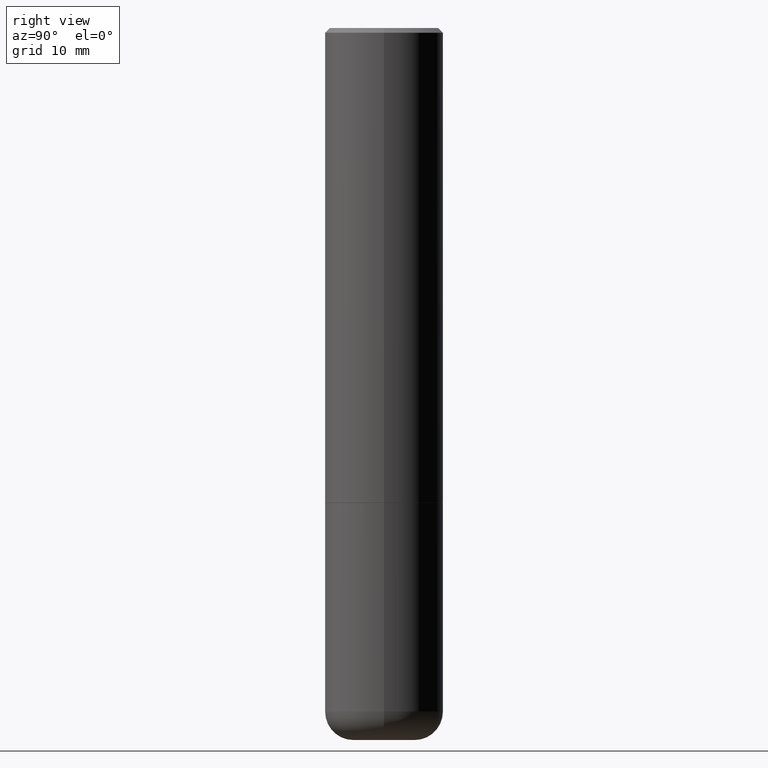
[diagram: clean part render]
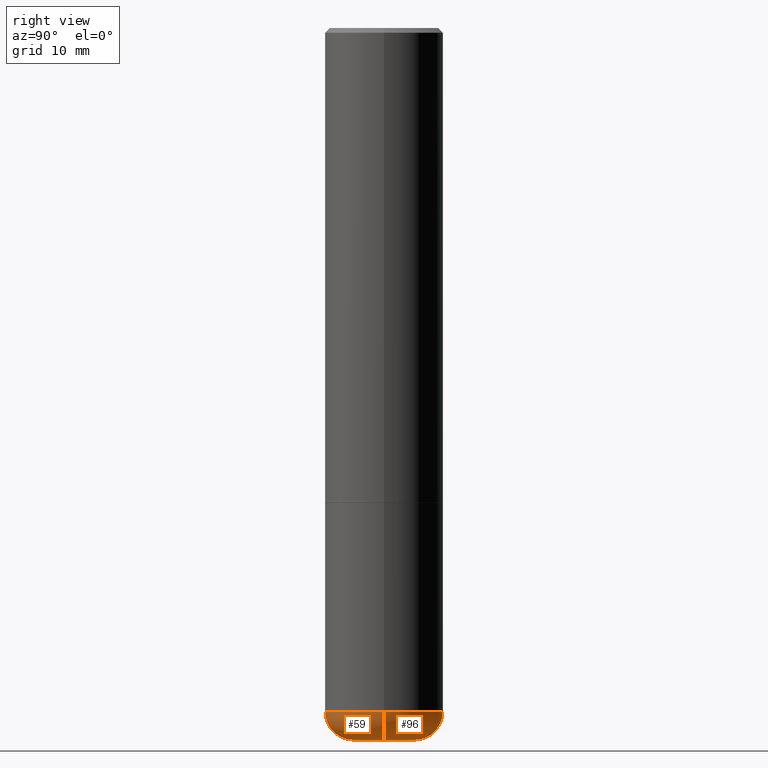
[diagram: same view with one multi-face feature highlighted, each face labeled with its STEP entity id]
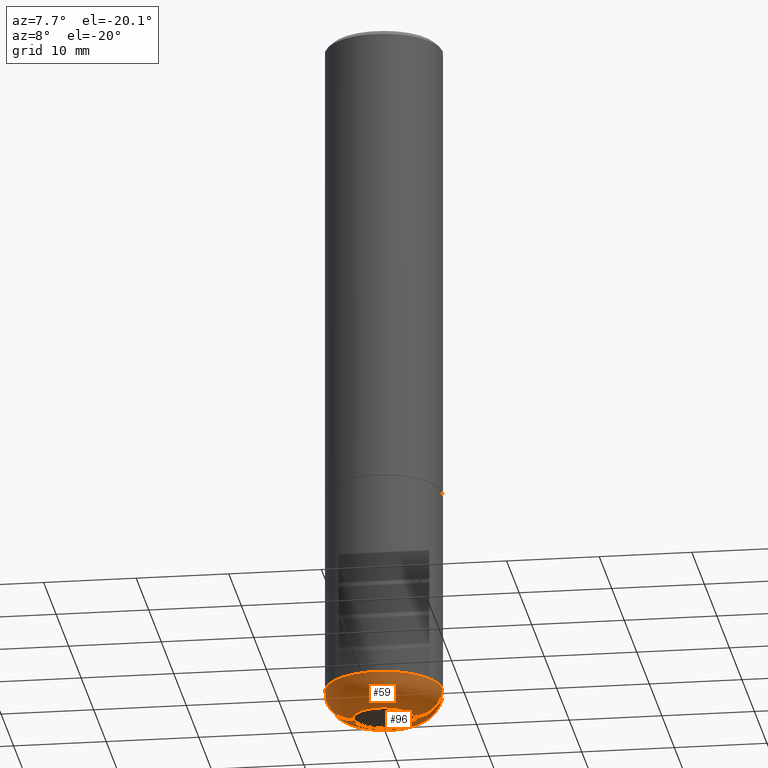
[diagram: same view with one multi-face feature highlighted, each face labeled with its STEP entity id]
A machine part, right view. The highlighted faces form ONE feature: a constant-radius fillet chain: 2 tangent blend faces with common blend radius 3.048 mm. The faces share edges in the B-rep.
A second angle (auxiliary view) of the same feature is appended — it is thin or edge-on in the first view.
Their STEP definitions:
[1] entity #96 (Torus):
#2 = VERTEX_POINT ( 'NONE', #92 ) ;
#7 = DIRECTION ( 'NONE',  ( -1.000000000000000000, 7.105427357601003436E-15, 0.000000000000000000 ) ) ;
#28 = TOROIDAL_SURFACE ( 'NONE', #40, 0.1300000000000000044, 0.1199999999999999123 ) ;
#40 = AXIS2_PLACEMENT_3D ( 'NONE', #326, #266, #43 ) ;
#43 = DIRECTION ( 'NONE',  ( 1.000000000000000000, -6.982962677686265133E-15, 4.883557194083112340E-29 ) ) ;
#50 = CARTESIAN_POINT ( 'NONE',  ( -0.1300000000000000044, -8.914923938254659640E-15, -3.000000000000000444 ) ) ;
#56 = DIRECTION ( 'NONE',  ( 1.000000000000000000, -6.982962677686273810E-15, 0.000000000000000000 ) ) ;
#61 = VERTEX_POINT ( 'NONE', #78 ) ;
#78 = CARTESIAN_POINT ( 'NONE',  ( -0.2499999999999999722, -8.279109416468010833E-15, -2.880000000000000338 ) ) ;
#92 = CARTESIAN_POINT ( 'NONE',  ( 0.2499999999999999722, -1.180120692528982640E-14, -2.880000000000000338 ) ) ;
#96 = ADVANCED_FACE ( 'NONE', ( #394 ), #28, .T. ) ;
#101 = EDGE_LOOP ( 'NONE', ( #323, #389, #157, #289 ) ) ;
#105 = CARTESIAN_POINT ( 'NONE',  ( 7.042950161813194609E-29, -1.005546625586826130E-14, -2.880000000000000338 ) ) ;
#106 = CARTESIAN_POINT ( 'NONE',  ( -0.1300000000000000044, -9.131760699380130235E-15, -2.880000000000000338 ) ) ;
#108 = DIRECTION ( 'NONE',  ( 7.105427357601001859E-15, 1.000000000000000000, -3.491481338843145583E-15 ) ) ;
#117 = CIRCLE ( 'NONE', #181, 0.1199999999999999262 ) ;
#121 = EDGE_CURVE ( 'NONE', #218, #2, #117, .T. ) ;
#136 = EDGE_CURVE ( 'NONE', #320, #61, #342, .T. ) ;
#157 = ORIENTED_EDGE ( 'NONE', *, *, #179, .F. ) ;
#162 = DIRECTION ( 'NONE',  ( 1.000000000000000000, -6.982962677686262766E-15, 0.000000000000000000 ) ) ;
#173 = DIRECTION ( 'NONE',  ( -2.445468806185136597E-29, 3.491481338843145583E-15, 1.000000000000000000 ) ) ;
#179 = EDGE_CURVE ( 'NONE', #2, #61, #292, .T. ) ;
#181 = AXIS2_PLACEMENT_3D ( 'NONE', #365, #359, #363 ) ;
#201 = CARTESIAN_POINT ( 'NONE',  ( 7.336406418555409790E-29, -1.047444401652943635E-14, -3.000000000000000444 ) ) ;
#218 = VERTEX_POINT ( 'NONE', #312 ) ;
#252 = EDGE_CURVE ( 'NONE', #218, #320, #269, .T. ) ;
#266 = DIRECTION ( 'NONE',  ( -2.445468806185136597E-29, 3.491481338843145583E-15, 1.000000000000000000 ) ) ;
#269 = CIRCLE ( 'NONE', #376, 0.1300000000000000044 ) ;
#277 = AXIS2_PLACEMENT_3D ( 'NONE', #105, #329, #162 ) ;
#289 = ORIENTED_EDGE ( 'NONE', *, *, #121, .F. ) ;
#292 = CIRCLE ( 'NONE', #277, 0.2500000000000000000 ) ;
#312 = CARTESIAN_POINT ( 'NONE',  ( 0.1300000000000000044, -1.138222916462865292E-14, -3.000000000000000444 ) ) ;
#320 = VERTEX_POINT ( 'NONE', #50 ) ;
#323 = ORIENTED_EDGE ( 'NONE', *, *, #252, .T. ) ;
#326 = CARTESIAN_POINT ( 'NONE',  ( 7.042950161813194609E-29, -1.005546625586826130E-14, -2.880000000000000338 ) ) ;
#329 = DIRECTION ( 'NONE',  ( -2.445468806185136597E-29, 3.491481338843145583E-15, 1.000000000000000000 ) ) ;
#336 = AXIS2_PLACEMENT_3D ( 'NONE', #106, #108, #7 ) ;
#342 = CIRCLE ( 'NONE', #336, 0.1199999999999999262 ) ;
#359 = DIRECTION ( 'NONE',  ( -6.982962677686266711E-15, -1.000000000000000000, 3.491481338843145583E-15 ) ) ;
#363 = DIRECTION ( 'NONE',  ( 1.000000000000000000, -6.982962677686272233E-15, 0.000000000000000000 ) ) ;
#365 = CARTESIAN_POINT ( 'NONE',  ( 0.1300000000000000044, -1.096325140396747629E-14, -2.880000000000000338 ) ) ;
#376 = AXIS2_PLACEMENT_3D ( 'NONE', #201, #173, #56 ) ;
#389 = ORIENTED_EDGE ( 'NONE', *, *, #136, .T. ) ;
#394 = FACE_OUTER_BOUND ( 'NONE', #101, .T. ) ;
[2] entity #59 (Torus):
#2 = VERTEX_POINT ( 'NONE', #92 ) ;
#6 = EDGE_LOOP ( 'NONE', ( #351, #327, #72, #330 ) ) ;
#7 = DIRECTION ( 'NONE',  ( -1.000000000000000000, 7.105427357601003436E-15, 0.000000000000000000 ) ) ;
#12 = CARTESIAN_POINT ( 'NONE',  ( 7.042950161813194609E-29, -1.005546625586826130E-14, -2.880000000000000338 ) ) ;
#20 = EDGE_CURVE ( 'NONE', #61, #2, #54, .T. ) ;
#38 = DIRECTION ( 'NONE',  ( -2.445468806185136597E-29, 3.491481338843145583E-15, 1.000000000000000000 ) ) ;
#50 = CARTESIAN_POINT ( 'NONE',  ( -0.1300000000000000044, -8.914923938254659640E-15, -3.000000000000000444 ) ) ;
#54 = CIRCLE ( 'NONE', #305, 0.2500000000000000000 ) ;
#59 = ADVANCED_FACE ( 'NONE', ( #333 ), #382, .T. ) ;
#61 = VERTEX_POINT ( 'NONE', #78 ) ;
#72 = ORIENTED_EDGE ( 'NONE', *, *, #121, .T. ) ;
#78 = CARTESIAN_POINT ( 'NONE',  ( -0.2499999999999999722, -8.279109416468010833E-15, -2.880000000000000338 ) ) ;
#92 = CARTESIAN_POINT ( 'NONE',  ( 0.2499999999999999722, -1.180120692528982640E-14, -2.880000000000000338 ) ) ;
#106 = CARTESIAN_POINT ( 'NONE',  ( -0.1300000000000000044, -9.131760699380130235E-15, -2.880000000000000338 ) ) ;
#108 = DIRECTION ( 'NONE',  ( 7.105427357601001859E-15, 1.000000000000000000, -3.491481338843145583E-15 ) ) ;
#114 = CARTESIAN_POINT ( 'NONE',  ( 7.042950161813194609E-29, -1.005546625586826130E-14, -2.880000000000000338 ) ) ;
#117 = CIRCLE ( 'NONE', #181, 0.1199999999999999262 ) ;
#119 = DIRECTION ( 'NONE',  ( 1.000000000000000000, -6.982962677686273810E-15, 0.000000000000000000 ) ) ;
#121 = EDGE_CURVE ( 'NONE', #218, #2, #117, .T. ) ;
#136 = EDGE_CURVE ( 'NONE', #320, #61, #342, .T. ) ;
#140 = DIRECTION ( 'NONE',  ( 1.000000000000000000, -6.982962677686262766E-15, 0.000000000000000000 ) ) ;
#169 = DIRECTION ( 'NONE',  ( -2.445468806185136597E-29, 3.491481338843145583E-15, 1.000000000000000000 ) ) ;
#175 = CARTESIAN_POINT ( 'NONE',  ( 7.336406418555409790E-29, -1.047444401652943635E-14, -3.000000000000000444 ) ) ;
#181 = AXIS2_PLACEMENT_3D ( 'NONE', #365, #359, #363 ) ;
#182 = AXIS2_PLACEMENT_3D ( 'NONE', #175, #169, #119 ) ;
#203 = AXIS2_PLACEMENT_3D ( 'NONE', #12, #38, #228 ) ;
#218 = VERTEX_POINT ( 'NONE', #312 ) ;
#228 = DIRECTION ( 'NONE',  ( 1.000000000000000000, -6.982962677686265133E-15, 4.883557194083112340E-29 ) ) ;
#305 = AXIS2_PLACEMENT_3D ( 'NONE', #114, #368, #140 ) ;
#306 = CIRCLE ( 'NONE', #182, 0.1300000000000000044 ) ;
#312 = CARTESIAN_POINT ( 'NONE',  ( 0.1300000000000000044, -1.138222916462865292E-14, -3.000000000000000444 ) ) ;
#320 = VERTEX_POINT ( 'NONE', #50 ) ;
#327 = ORIENTED_EDGE ( 'NONE', *, *, #348, .T. ) ;
#330 = ORIENTED_EDGE ( 'NONE', *, *, #20, .F. ) ;
#333 = FACE_OUTER_BOUND ( 'NONE', #6, .T. ) ;
#336 = AXIS2_PLACEMENT_3D ( 'NONE', #106, #108, #7 ) ;
#342 = CIRCLE ( 'NONE', #336, 0.1199999999999999262 ) ;
#348 = EDGE_CURVE ( 'NONE', #320, #218, #306, .T. ) ;
#351 = ORIENTED_EDGE ( 'NONE', *, *, #136, .F. ) ;
#359 = DIRECTION ( 'NONE',  ( -6.982962677686266711E-15, -1.000000000000000000, 3.491481338843145583E-15 ) ) ;
#363 = DIRECTION ( 'NONE',  ( 1.000000000000000000, -6.982962677686272233E-15, 0.000000000000000000 ) ) ;
#365 = CARTESIAN_POINT ( 'NONE',  ( 0.1300000000000000044, -1.096325140396747629E-14, -2.880000000000000338 ) ) ;
#368 = DIRECTION ( 'NONE',  ( -2.445468806185136597E-29, 3.491481338843145583E-15, 1.000000000000000000 ) ) ;
#382 = TOROIDAL_SURFACE ( 'NONE', #203, 0.1300000000000000044, 0.1199999999999999123 ) ;